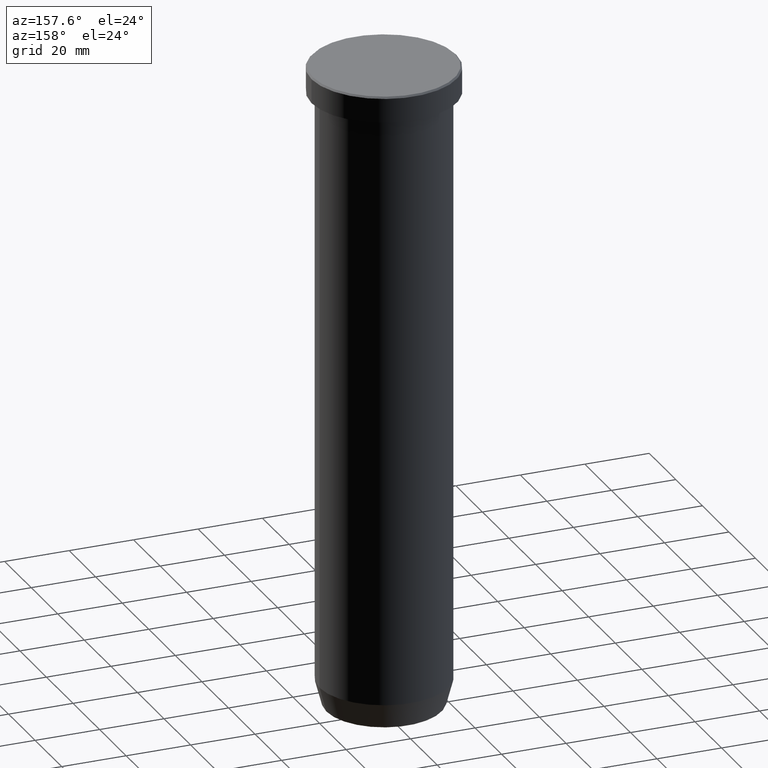
[diagram: clean part render]
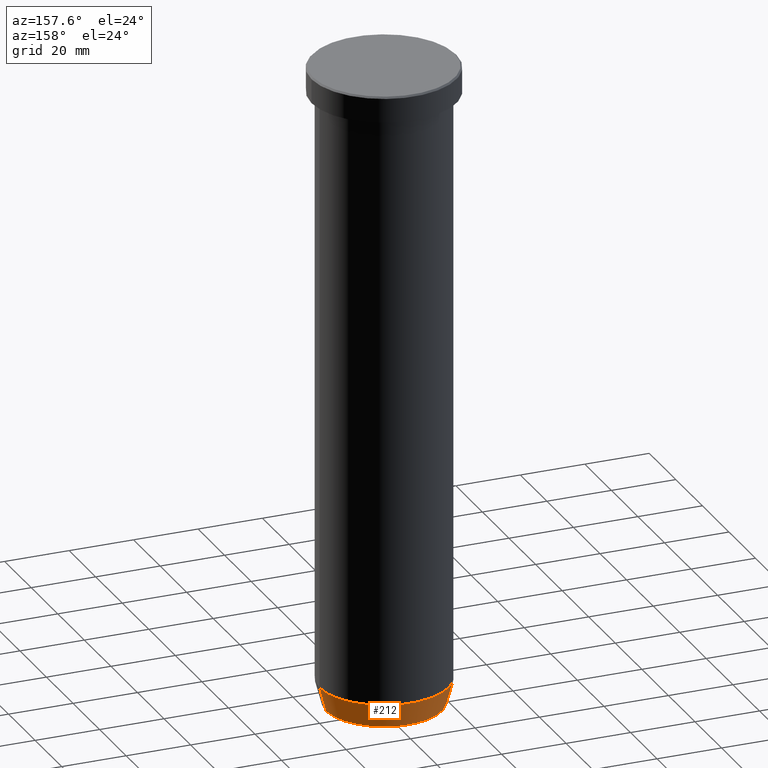
[diagram: same view with one face highlighted and labeled with its STEP entity id]
A machine part, auxiliary view. The second image highlights one B-rep face of the part: STEP entity #212.
In plain terms, the highlighted conical surface has half-angle 15 deg.
Its self-contained STEP definition (entity closure, byte-faithful):
#1 = CARTESIAN_POINT ( 'NONE',  ( 0.000000000000000000, 0.000000000000000000, -199.6294095225512706 ) ) ;
#17 = DIRECTION ( 'NONE',  ( -0.2588190451025209060, 3.169619151431766790E-17, 0.9659258262890682012 ) ) ;
#26 = DIRECTION ( 'NONE',  ( -0.000000000000000000, -0.000000000000000000, 1.000000000000000000 ) ) ;
#49 = AXIS2_PLACEMENT_3D ( 'NONE', #313, #119, #267 ) ;
#62 = CARTESIAN_POINT ( 'NONE',  ( -20.00000000000000000, 2.449293598294706513E-15, -192.0000000000000000 ) ) ;
#64 = VECTOR ( 'NONE', #259, 1000.000000000000000 ) ;
#84 = CARTESIAN_POINT ( 'NONE',  ( 17.95570587970606269, 0.000000000000000000, -199.6294095225512706 ) ) ;
#88 = DIRECTION ( 'NONE',  ( -1.000000000000000000, 0.000000000000000000, 0.000000000000000000 ) ) ;
#105 = CIRCLE ( 'NONE', #165, 20.00000000000000000 ) ;
#108 = ORIENTED_EDGE ( 'NONE', *, *, #425, .T. ) ;
#119 = DIRECTION ( 'NONE',  ( -0.000000000000000000, -0.000000000000000000, 1.000000000000000000 ) ) ;
#125 = EDGE_CURVE ( 'NONE', #324, #181, #493, .T. ) ;
#129 = FACE_OUTER_BOUND ( 'NONE', #372, .T. ) ;
#146 = EDGE_CURVE ( 'NONE', #338, #201, #389, .T. ) ;
#162 = CARTESIAN_POINT ( 'NONE',  ( 17.85640646055101399, 0.000000000000000000, -200.0000000000000000 ) ) ;
#165 = AXIS2_PLACEMENT_3D ( 'NONE', #221, #26, #402 ) ;
#181 = VERTEX_POINT ( 'NONE', #62 ) ;
#201 = VERTEX_POINT ( 'NONE', #497 ) ;
#210 = CARTESIAN_POINT ( 'NONE',  ( -17.85640646055101399, 2.186779101618792051E-15, -200.0000000000000000 ) ) ;
#212 = ADVANCED_FACE ( 'NONE', ( #129 ), #258, .T. ) ;
#221 = CARTESIAN_POINT ( 'NONE',  ( 0.000000000000000000, 0.000000000000000000, -192.0000000000000000 ) ) ;
#227 = CARTESIAN_POINT ( 'NONE',  ( -17.95570587970606269, 2.324116685748020582E-15, -199.6294095225512706 ) ) ;
#232 = AXIS2_PLACEMENT_3D ( 'NONE', #1, #239, #88 ) ;
#239 = DIRECTION ( 'NONE',  ( -0.000000000000000000, -0.000000000000000000, 1.000000000000000000 ) ) ;
#258 = CONICAL_SURFACE ( 'NONE', #49, 17.85640646055101399, 0.2617993877991495744 ) ;
#259 = DIRECTION ( 'NONE',  ( 0.2588190451025209060, 0.000000000000000000, 0.9659258262890682012 ) ) ;
#267 = DIRECTION ( 'NONE',  ( 1.000000000000000000, 0.000000000000000000, 0.000000000000000000 ) ) ;
#289 = ORIENTED_EDGE ( 'NONE', *, *, #125, .T. ) ;
#300 = EDGE_CURVE ( 'NONE', #201, #181, #105, .T. ) ;
#313 = CARTESIAN_POINT ( 'NONE',  ( 0.000000000000000000, 0.000000000000000000, -200.0000000000000000 ) ) ;
#324 = VERTEX_POINT ( 'NONE', #227 ) ;
#338 = VERTEX_POINT ( 'NONE', #84 ) ;
#369 = ORIENTED_EDGE ( 'NONE', *, *, #146, .F. ) ;
#372 = EDGE_LOOP ( 'NONE', ( #108, #289, #599, #369 ) ) ;
#389 = LINE ( 'NONE', #162, #64 ) ;
#402 = DIRECTION ( 'NONE',  ( 1.000000000000000000, 0.000000000000000000, 0.000000000000000000 ) ) ;
#425 = EDGE_CURVE ( 'NONE', #338, #324, #498, .T. ) ;
#493 = LINE ( 'NONE', #210, #584 ) ;
#497 = CARTESIAN_POINT ( 'NONE',  ( 20.00000000000000000, 0.000000000000000000, -192.0000000000000000 ) ) ;
#498 = CIRCLE ( 'NONE', #232, 17.95570587970606269 ) ;
#584 = VECTOR ( 'NONE', #17, 1000.000000000000000 ) ;
#599 = ORIENTED_EDGE ( 'NONE', *, *, #300, .F. ) ;